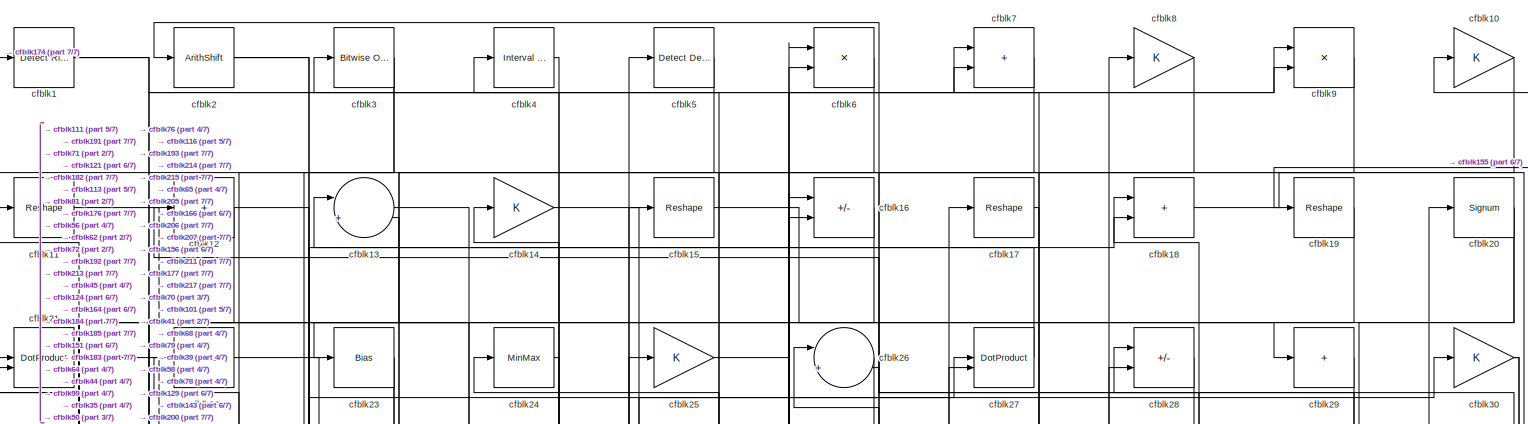
[diagram: root canvas - part 1/7, full width, top band]
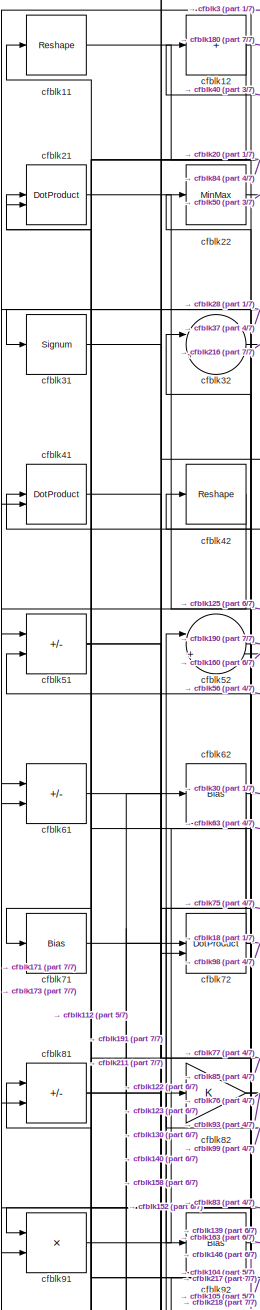
[diagram: root canvas - part 2/7, top left region]
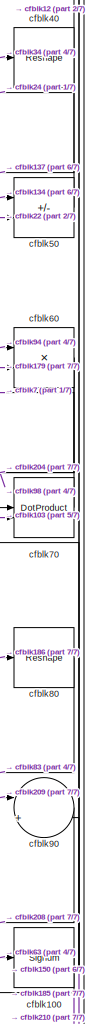
[diagram: root canvas - part 3/7, top right region]
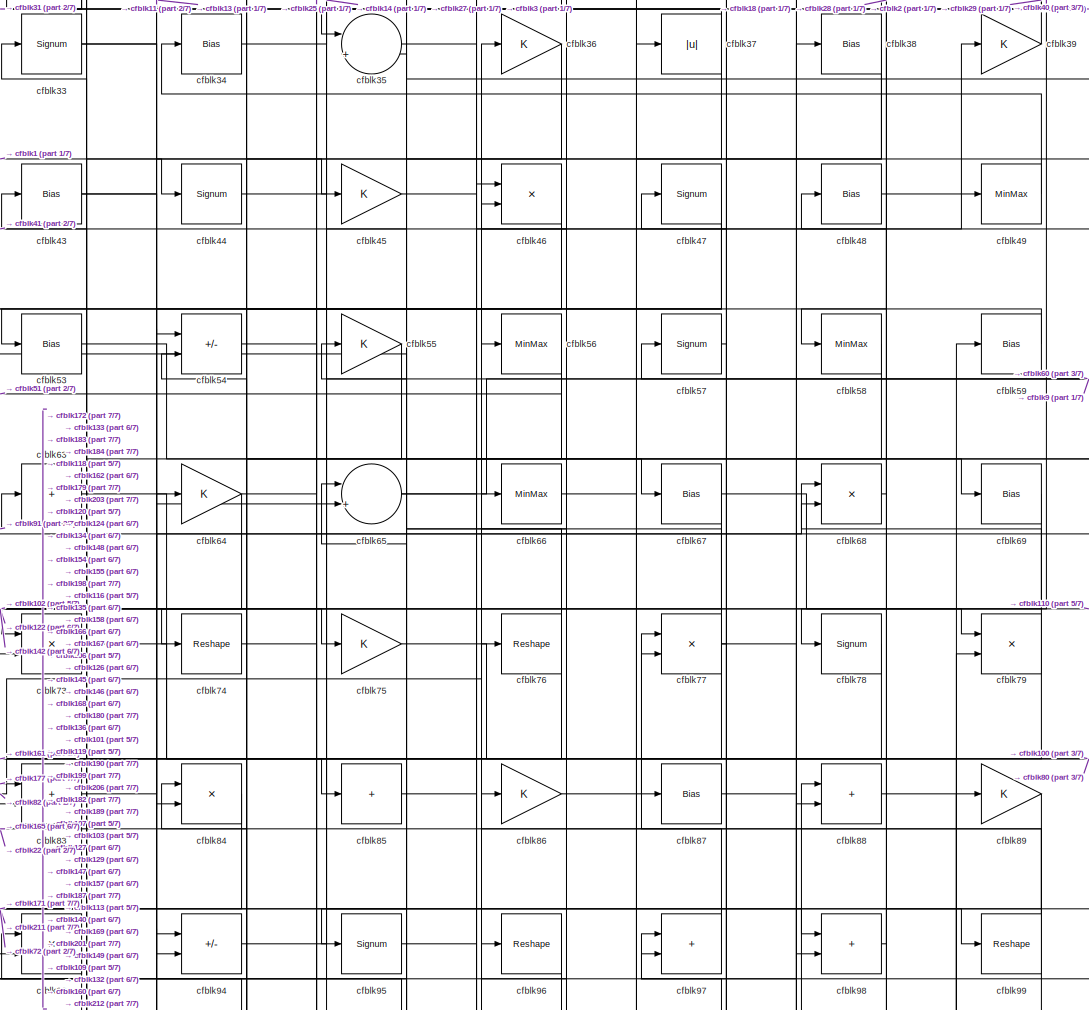
[diagram: root canvas - part 4/7, top center region]
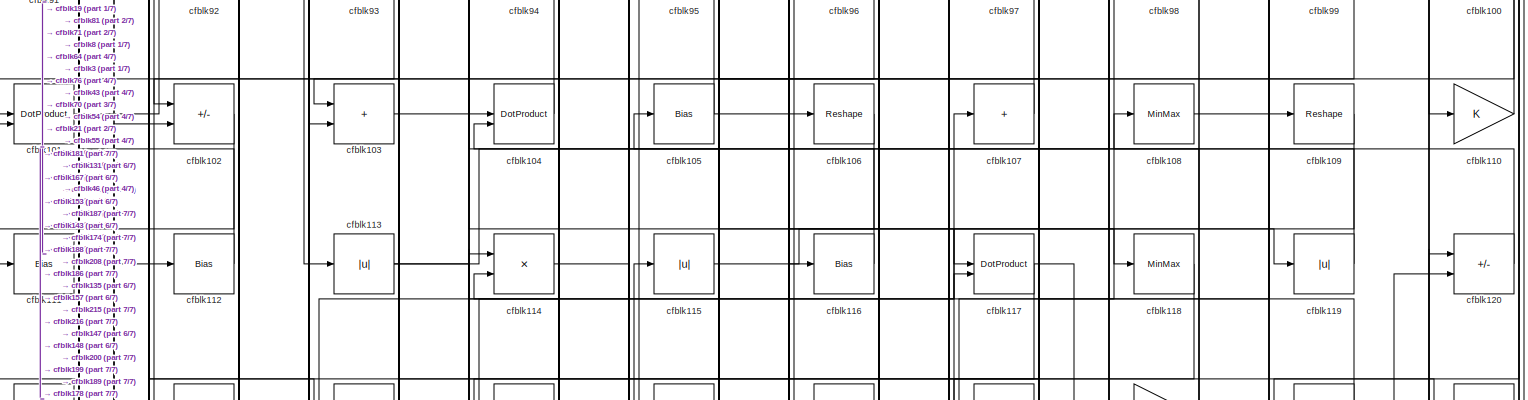
[diagram: root canvas - part 5/7, full width, middle band]
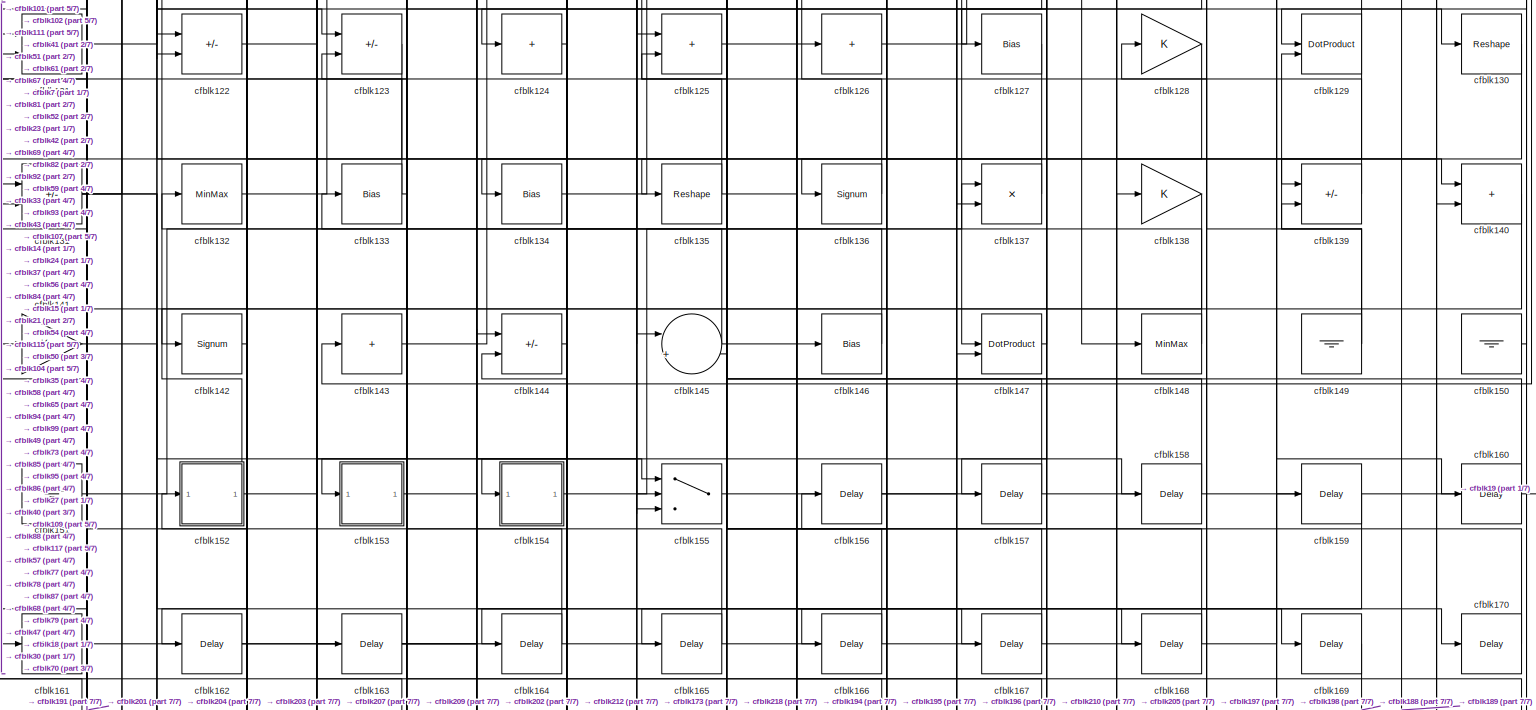
[diagram: root canvas - part 6/7, full width, middle band]
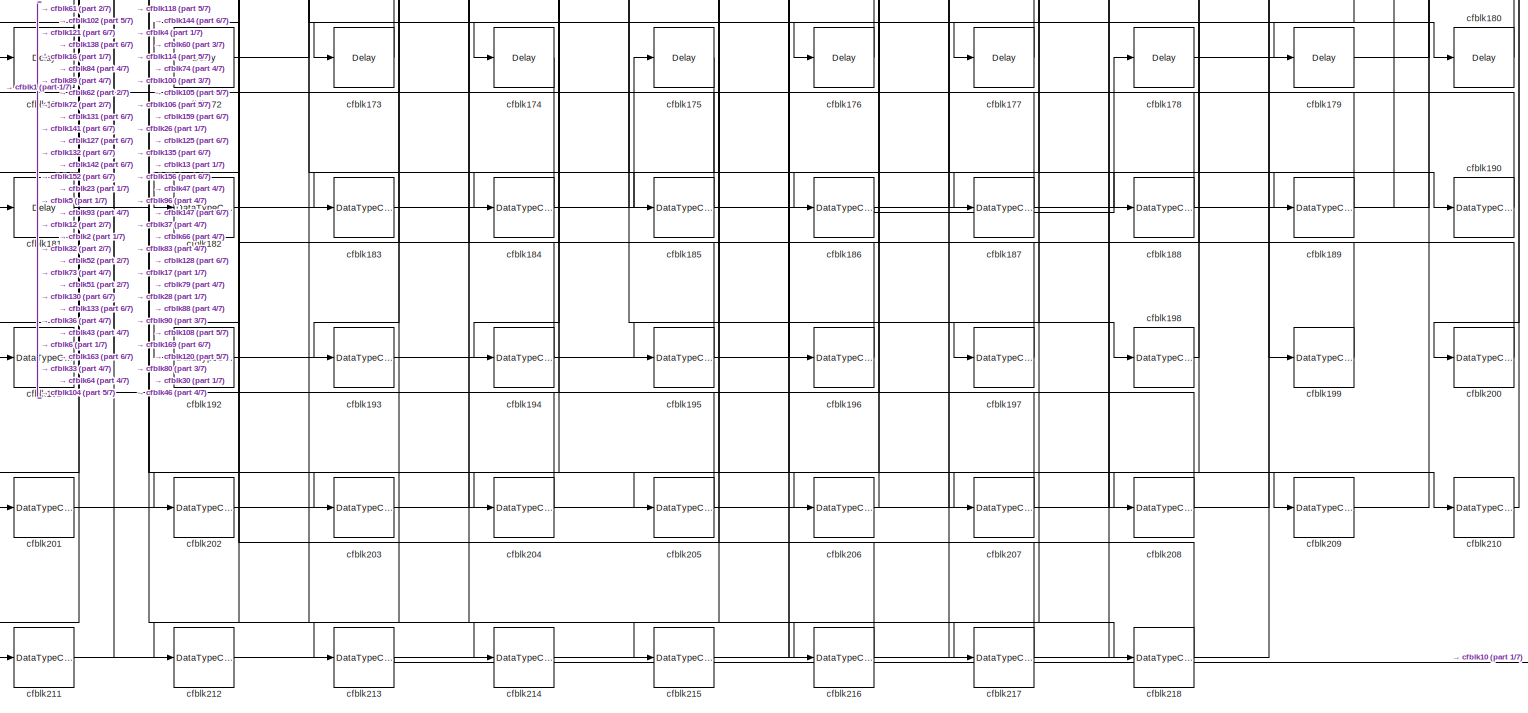
[diagram: root canvas - part 7/7, full width, bottom band]
MODEL slx_3838f00c95ae
KIND model
CONFIG AbsTol = auto
CONFIG EnableMultiTasking = off
CONFIG FixedStep = auto
CONFIG MaxStep = auto
CONFIG MinStep = auto
CONFIG RelTol = 1e-3
CONFIG SampleTimeConstraint = Unconstrained
CONFIG SolverName = VariableStepAuto
CONFIG StartTime = 0.0
CONFIG StopTime = 10.0
BLOCK [Reference] cfblk1  REF=hdlsllib/Logic and Bit
Operations/Detect Rise
Nonnegative
  SourceBlock = hdlsllib/Logic and Bit\nOperations/Detect Rise\nNonnegative
  SourceType = Detect Rise Nonnegative
BLOCK [Gain] cfblk10
BLOCK [Signum] cfblk100
BLOCK [DotProduct] cfblk101
  OutDataTypeStr = Inherit: Inherit via internal rule
BLOCK [Sum] cfblk102
  IconShape = rectangular
  Inputs = +-
BLOCK [Sum] cfblk103
  IconShape = rectangular
BLOCK [DotProduct] cfblk104
  OutDataTypeStr = Inherit: Inherit via internal rule
BLOCK [Bias] cfblk105
  Bias = 0.0
  SaturateOnIntegerOverflow = off
BLOCK [Reshape] cfblk106
BLOCK [Sum] cfblk107
  IconShape = rectangular
  Inputs = +
BLOCK [MinMax] cfblk108
BLOCK [Reshape] cfblk109
BLOCK [Reshape] cfblk11
BLOCK [Gain] cfblk110
BLOCK [Bias] cfblk111
  Bias = 0.0
  SaturateOnIntegerOverflow = off
BLOCK [Bias] cfblk112
  Bias = 0.0
  SaturateOnIntegerOverflow = off
BLOCK [Abs] cfblk113
  SaturateOnIntegerOverflow = off
BLOCK [Product] cfblk114
  Inputs = */
  RndMeth = Zero
  SaturateOnIntegerOverflow = on
BLOCK [Abs] cfblk115
  SaturateOnIntegerOverflow = off
BLOCK [Bias] cfblk116
  Bias = 0.0
  SaturateOnIntegerOverflow = off
BLOCK [DotProduct] cfblk117
  OutDataTypeStr = Inherit: Inherit via internal rule
BLOCK [MinMax] cfblk118
BLOCK [Abs] cfblk119
  SaturateOnIntegerOverflow = off
BLOCK [Sum] cfblk12
  IconShape = rectangular
  Inputs = +
BLOCK [Sum] cfblk120
  IconShape = rectangular
  Inputs = +-
BLOCK [Product] cfblk121
  Inputs = */
  RndMeth = Zero
  SaturateOnIntegerOverflow = on
BLOCK [Sum] cfblk122
  IconShape = rectangular
  Inputs = +-
BLOCK [Sum] cfblk123
  IconShape = rectangular
  Inputs = +-
BLOCK [Sum] cfblk124
  IconShape = rectangular
  Inputs = +
BLOCK [Sum] cfblk125
  IconShape = rectangular
BLOCK [Sum] cfblk126
  IconShape = rectangular
  Inputs = +
BLOCK [Bias] cfblk127
  Bias = 0.0
  SaturateOnIntegerOverflow = off
BLOCK [Gain] cfblk128
BLOCK [DotProduct] cfblk129
  OutDataTypeStr = Inherit: Inherit via internal rule
BLOCK [Sum] cfblk13
  Inputs = |++
BLOCK [Reshape] cfblk130
BLOCK [Sum] cfblk131
  IconShape = rectangular
  Inputs = +-
BLOCK [MinMax] cfblk132
BLOCK [Bias] cfblk133
  Bias = 0.0
  SaturateOnIntegerOverflow = off
BLOCK [Bias] cfblk134
  Bias = 0.0
  SaturateOnIntegerOverflow = off
BLOCK [Reshape] cfblk135
BLOCK [Signum] cfblk136
BLOCK [Product] cfblk137
  Inputs = */
  RndMeth = Zero
  SaturateOnIntegerOverflow = on
BLOCK [Gain] cfblk138
BLOCK [Sum] cfblk139
  IconShape = rectangular
  Inputs = +-
BLOCK [Gain] cfblk14
BLOCK [Sum] cfblk140
  IconShape = rectangular
BLOCK [Gain] cfblk141
BLOCK [Signum] cfblk142
BLOCK [Sum] cfblk143
  IconShape = rectangular
  Inputs = +
BLOCK [Sum] cfblk144
  IconShape = rectangular
  Inputs = +-
BLOCK [Sum] cfblk145
  Inputs = |++
BLOCK [Bias] cfblk146
  Bias = 0.0
  SaturateOnIntegerOverflow = off
BLOCK [DotProduct] cfblk147
  OutDataTypeStr = Inherit: Inherit via internal rule
BLOCK [MinMax] cfblk148
BLOCK [Ground] cfblk149
BLOCK [Reshape] cfblk15
BLOCK [Ground] cfblk150
BLOCK [Ground] cfblk151
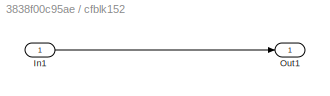
BLOCK [SubSystem] cfblk152
  LibrarySourceBlock = hdlsllib/Ports &\nSubsystems/Subsystem
BLOCK [Inport] cfblk152/In1
BLOCK [Outport] cfblk152/Out1
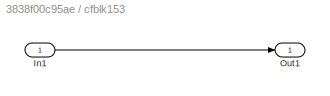
BLOCK [SubSystem] cfblk153
  LibrarySourceBlock = hdlsllib/Ports &\nSubsystems/Subsystem
BLOCK [Inport] cfblk153/In1
BLOCK [Outport] cfblk153/Out1
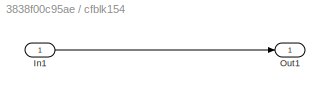
BLOCK [SubSystem] cfblk154
  LibrarySourceBlock = hdlsllib/Ports &\nSubsystems/Subsystem
BLOCK [Inport] cfblk154/In1
BLOCK [Outport] cfblk154/Out1
BLOCK [Switch] cfblk155
  InputSameDT = off
  SaturateOnIntegerOverflow = off
BLOCK [Delay] cfblk156
  InputPortMap = u0
  SampleTime = 1
BLOCK [Delay] cfblk157
  InputPortMap = u0
  SampleTime = 1
BLOCK [Delay] cfblk158
  InputPortMap = u0
  SampleTime = 1
BLOCK [Delay] cfblk159
  InputPortMap = u0
  SampleTime = 1
BLOCK [Sum] cfblk16
  IconShape = rectangular
  Inputs = +-
BLOCK [Delay] cfblk160
  InputPortMap = u0
  SampleTime = 1
BLOCK [Delay] cfblk161
  InputPortMap = u0
  SampleTime = 1
BLOCK [Delay] cfblk162
  InputPortMap = u0
  SampleTime = 1
BLOCK [Delay] cfblk163
  InputPortMap = u0
  SampleTime = 1
BLOCK [Delay] cfblk164
  InputPortMap = u0
  SampleTime = 1
BLOCK [Delay] cfblk165
  InputPortMap = u0
  SampleTime = 1
BLOCK [Delay] cfblk166
  InputPortMap = u0
  SampleTime = 1
BLOCK [Delay] cfblk167
  InputPortMap = u0
  SampleTime = 1
BLOCK [Delay] cfblk168
  InputPortMap = u0
  SampleTime = 1
BLOCK [Delay] cfblk169
  InputPortMap = u0
  SampleTime = 1
BLOCK [Reshape] cfblk17
BLOCK [Delay] cfblk170
  InputPortMap = u0
  SampleTime = 1
BLOCK [Delay] cfblk171
  InputPortMap = u0
  SampleTime = 1
BLOCK [Delay] cfblk172
  InputPortMap = u0
  SampleTime = 1
BLOCK [Delay] cfblk173
  InputPortMap = u0
  SampleTime = 1
BLOCK [Delay] cfblk174
  InputPortMap = u0
  SampleTime = 1
BLOCK [Delay] cfblk175
  InputPortMap = u0
  SampleTime = 1
BLOCK [Delay] cfblk176
  InputPortMap = u0
  SampleTime = 1
BLOCK [Delay] cfblk177
  InputPortMap = u0
  SampleTime = 1
BLOCK [Delay] cfblk178
  InputPortMap = u0
  SampleTime = 1
BLOCK [Delay] cfblk179
  InputPortMap = u0
  SampleTime = 1
BLOCK [Sum] cfblk18
  IconShape = rectangular
BLOCK [Delay] cfblk180
  InputPortMap = u0
  SampleTime = 1
BLOCK [Delay] cfblk181
  InputPortMap = u0
  SampleTime = 1
BLOCK [DataTypeConversion] cfblk182
  OutDataTypeStr = uint8
  RndMeth = Floor
  SaturateOnIntegerOverflow = off
BLOCK [DataTypeConversion] cfblk183
  OutDataTypeStr = uint8
  RndMeth = Floor
  SaturateOnIntegerOverflow = off
BLOCK [DataTypeConversion] cfblk184
  RndMeth = Floor
  SaturateOnIntegerOverflow = off
BLOCK [DataTypeConversion] cfblk185
  OutDataTypeStr = uint8
  RndMeth = Floor
  SaturateOnIntegerOverflow = off
BLOCK [DataTypeConversion] cfblk186
  RndMeth = Floor
  SaturateOnIntegerOverflow = off
BLOCK [DataTypeConversion] cfblk187
  OutDataTypeStr = uint8
  RndMeth = Floor
  SaturateOnIntegerOverflow = off
BLOCK [DataTypeConversion] cfblk188
  OutDataTypeStr = uint8
  RndMeth = Floor
  SaturateOnIntegerOverflow = off
BLOCK [DataTypeConversion] cfblk189
  RndMeth = Floor
  SaturateOnIntegerOverflow = off
BLOCK [Reshape] cfblk19
BLOCK [DataTypeConversion] cfblk190
  OutDataTypeStr = uint8
  RndMeth = Floor
  SaturateOnIntegerOverflow = off
BLOCK [DataTypeConversion] cfblk191
  RndMeth = Floor
  SaturateOnIntegerOverflow = off
BLOCK [DataTypeConversion] cfblk192
  OutDataTypeStr = uint8
  RndMeth = Floor
  SaturateOnIntegerOverflow = off
BLOCK [DataTypeConversion] cfblk193
  OutDataTypeStr = uint8
  RndMeth = Floor
  SaturateOnIntegerOverflow = off
BLOCK [DataTypeConversion] cfblk194
  OutDataTypeStr = uint8
  RndMeth = Floor
  SaturateOnIntegerOverflow = off
BLOCK [DataTypeConversion] cfblk195
  OutDataTypeStr = uint8
  RndMeth = Floor
  SaturateOnIntegerOverflow = off
BLOCK [DataTypeConversion] cfblk196
  OutDataTypeStr = uint8
  RndMeth = Floor
  SaturateOnIntegerOverflow = off
BLOCK [DataTypeConversion] cfblk197
  OutDataTypeStr = uint8
  RndMeth = Floor
  SaturateOnIntegerOverflow = off
BLOCK [DataTypeConversion] cfblk198
  OutDataTypeStr = uint8
  RndMeth = Floor
  SaturateOnIntegerOverflow = off
BLOCK [DataTypeConversion] cfblk199
  OutDataTypeStr = uint8
  RndMeth = Floor
  SaturateOnIntegerOverflow = off
BLOCK [ArithShift] cfblk2
  BitShiftNumber = 8
  InputPortMap = u0
BLOCK [Signum] cfblk20
BLOCK [DataTypeConversion] cfblk200
  OutDataTypeStr = uint8
  RndMeth = Floor
  SaturateOnIntegerOverflow = off
BLOCK [DataTypeConversion] cfblk201
  RndMeth = Floor
  SaturateOnIntegerOverflow = off
BLOCK [DataTypeConversion] cfblk202
  OutDataTypeStr = uint8
  RndMeth = Floor
  SaturateOnIntegerOverflow = off
BLOCK [DataTypeConversion] cfblk203
  OutDataTypeStr = uint8
  RndMeth = Floor
  SaturateOnIntegerOverflow = off
BLOCK [DataTypeConversion] cfblk204
  OutDataTypeStr = uint8
  RndMeth = Floor
  SaturateOnIntegerOverflow = off
BLOCK [DataTypeConversion] cfblk205
  RndMeth = Floor
  SaturateOnIntegerOverflow = off
BLOCK [DataTypeConversion] cfblk206
  OutDataTypeStr = uint8
  RndMeth = Floor
  SaturateOnIntegerOverflow = off
BLOCK [DataTypeConversion] cfblk207
  OutDataTypeStr = uint8
  RndMeth = Floor
  SaturateOnIntegerOverflow = off
BLOCK [DataTypeConversion] cfblk208
  OutDataTypeStr = uint8
  RndMeth = Floor
  SaturateOnIntegerOverflow = off
BLOCK [DataTypeConversion] cfblk209
  OutDataTypeStr = uint8
  RndMeth = Floor
  SaturateOnIntegerOverflow = off
BLOCK [DotProduct] cfblk21
  OutDataTypeStr = Inherit: Inherit via internal rule
BLOCK [DataTypeConversion] cfblk210
  OutDataTypeStr = uint8
  RndMeth = Floor
  SaturateOnIntegerOverflow = off
BLOCK [DataTypeConversion] cfblk211
  RndMeth = Floor
  SaturateOnIntegerOverflow = off
BLOCK [DataTypeConversion] cfblk212
  OutDataTypeStr = uint8
  RndMeth = Floor
  SaturateOnIntegerOverflow = off
BLOCK [DataTypeConversion] cfblk213
  OutDataTypeStr = uint8
  RndMeth = Floor
  SaturateOnIntegerOverflow = off
BLOCK [DataTypeConversion] cfblk214
  OutDataTypeStr = uint8
  RndMeth = Floor
  SaturateOnIntegerOverflow = off
BLOCK [DataTypeConversion] cfblk215
  OutDataTypeStr = uint8
  RndMeth = Floor
  SaturateOnIntegerOverflow = off
BLOCK [DataTypeConversion] cfblk216
  OutDataTypeStr = uint8
  RndMeth = Floor
  SaturateOnIntegerOverflow = off
BLOCK [DataTypeConversion] cfblk217
  OutDataTypeStr = uint8
  RndMeth = Floor
  SaturateOnIntegerOverflow = off
BLOCK [DataTypeConversion] cfblk218
  OutDataTypeStr = uint8
  RndMeth = Floor
  SaturateOnIntegerOverflow = off
BLOCK [MinMax] cfblk22
BLOCK [Bias] cfblk23
  Bias = 0.0
  SaturateOnIntegerOverflow = off
BLOCK [MinMax] cfblk24
BLOCK [Gain] cfblk25
BLOCK [Sum] cfblk26
  Inputs = |++
BLOCK [DotProduct] cfblk27
  OutDataTypeStr = Inherit: Inherit via internal rule
BLOCK [Sum] cfblk28
  IconShape = rectangular
  Inputs = +-
BLOCK [Sum] cfblk29
  IconShape = rectangular
  Inputs = +
BLOCK [Reference] cfblk3  REF=simulink/Logic and Bit
Operations/Bitwise
Operator
  LibrarySourceBlock = hdlsllib/Logic and Bit\nOperations/Bitwise\nOperator
  SourceBlock = simulink/Logic and Bit\nOperations/Bitwise\nOperator
  SourceType = Bitwise Operator
BLOCK [Gain] cfblk30
BLOCK [Signum] cfblk31
BLOCK [Sum] cfblk32
  Inputs = |++
BLOCK [Signum] cfblk33
BLOCK [Bias] cfblk34
  Bias = 0.0
  SaturateOnIntegerOverflow = off
BLOCK [Sum] cfblk35
  Inputs = |++
BLOCK [Gain] cfblk36
BLOCK [Abs] cfblk37
  SaturateOnIntegerOverflow = off
BLOCK [Bias] cfblk38
  Bias = 0.0
  SaturateOnIntegerOverflow = off
BLOCK [Gain] cfblk39
BLOCK [Reference] cfblk4  REF=hdlsllib/Logic and Bit
Operations/Interval Test
  SourceBlock = hdlsllib/Logic and Bit\nOperations/Interval Test
  SourceType = Interval Test
BLOCK [Reshape] cfblk40
BLOCK [DotProduct] cfblk41
  OutDataTypeStr = Inherit: Inherit via internal rule
BLOCK [Reshape] cfblk42
BLOCK [Bias] cfblk43
  Bias = 0.0
  SaturateOnIntegerOverflow = off
BLOCK [Signum] cfblk44
BLOCK [Gain] cfblk45
BLOCK [Product] cfblk46
  Inputs = */
  RndMeth = Zero
  SaturateOnIntegerOverflow = on
BLOCK [Signum] cfblk47
BLOCK [Bias] cfblk48
  Bias = 0.0
  SaturateOnIntegerOverflow = off
BLOCK [MinMax] cfblk49
BLOCK [Reference] cfblk5  REF=simulink/Logic and Bit
Operations/Detect
Decrease
  LibrarySourceBlock = hdlsllib/Logic and Bit\nOperations/Detect\nDecrease
  SourceBlock = simulink/Logic and Bit\nOperations/Detect\nDecrease
  SourceType = Detect Decrease
BLOCK [Sum] cfblk50
  IconShape = rectangular
  Inputs = +-
BLOCK [Sum] cfblk51
  IconShape = rectangular
  Inputs = +-
BLOCK [Sum] cfblk52
  Inputs = |++
BLOCK [Bias] cfblk53
  Bias = 0.0
  SaturateOnIntegerOverflow = off
BLOCK [Sum] cfblk54
  IconShape = rectangular
  Inputs = +-
BLOCK [Gain] cfblk55
BLOCK [MinMax] cfblk56
BLOCK [Signum] cfblk57
BLOCK [MinMax] cfblk58
BLOCK [Bias] cfblk59
  Bias = 0.0
  SaturateOnIntegerOverflow = off
BLOCK [Product] cfblk6
  Inputs = */
  RndMeth = Zero
  SaturateOnIntegerOverflow = on
BLOCK [Product] cfblk60
  Inputs = */
  RndMeth = Zero
  SaturateOnIntegerOverflow = on
BLOCK [Sum] cfblk61
  IconShape = rectangular
  Inputs = +-
BLOCK [Bias] cfblk62
  Bias = 0.0
  SaturateOnIntegerOverflow = off
BLOCK [Sum] cfblk63
  IconShape = rectangular
  Inputs = +
BLOCK [Gain] cfblk64
BLOCK [Sum] cfblk65
  Inputs = |++
BLOCK [MinMax] cfblk66
BLOCK [Bias] cfblk67
  Bias = 0.0
  SaturateOnIntegerOverflow = off
BLOCK [Product] cfblk68
  Inputs = */
  RndMeth = Zero
  SaturateOnIntegerOverflow = on
BLOCK [Bias] cfblk69
  Bias = 0.0
  SaturateOnIntegerOverflow = off
BLOCK [Sum] cfblk7
  IconShape = rectangular
BLOCK [DotProduct] cfblk70
  OutDataTypeStr = Inherit: Inherit via internal rule
BLOCK [Bias] cfblk71
  Bias = 0.0
  SaturateOnIntegerOverflow = off
BLOCK [DotProduct] cfblk72
  OutDataTypeStr = Inherit: Inherit via internal rule
BLOCK [Product] cfblk73
  Inputs = */
  RndMeth = Zero
  SaturateOnIntegerOverflow = on
BLOCK [Reshape] cfblk74
BLOCK [Gain] cfblk75
BLOCK [Reshape] cfblk76
BLOCK [Product] cfblk77
  Inputs = */
  RndMeth = Zero
  SaturateOnIntegerOverflow = on
BLOCK [Signum] cfblk78
BLOCK [Product] cfblk79
  Inputs = */
  RndMeth = Zero
  SaturateOnIntegerOverflow = on
BLOCK [Gain] cfblk8
BLOCK [Reshape] cfblk80
BLOCK [Sum] cfblk81
  IconShape = rectangular
  Inputs = +-
BLOCK [Gain] cfblk82
BLOCK [Sum] cfblk83
  IconShape = rectangular
BLOCK [Product] cfblk84
  Inputs = */
  RndMeth = Zero
  SaturateOnIntegerOverflow = on
BLOCK [Sum] cfblk85
  IconShape = rectangular
  Inputs = +
BLOCK [Gain] cfblk86
BLOCK [Bias] cfblk87
  Bias = 0.0
  SaturateOnIntegerOverflow = off
BLOCK [Sum] cfblk88
  IconShape = rectangular
BLOCK [Gain] cfblk89
BLOCK [Product] cfblk9
  Inputs = */
  RndMeth = Zero
  SaturateOnIntegerOverflow = on
BLOCK [Sum] cfblk90
  Inputs = |++
BLOCK [Product] cfblk91
  Inputs = */
  RndMeth = Zero
  SaturateOnIntegerOverflow = on
BLOCK [Bias] cfblk92
  Bias = 0.0
  SaturateOnIntegerOverflow = off
BLOCK [Product] cfblk93
  Inputs = */
  RndMeth = Zero
  SaturateOnIntegerOverflow = on
BLOCK [Sum] cfblk94
  IconShape = rectangular
  Inputs = +-
BLOCK [Signum] cfblk95
BLOCK [Reshape] cfblk96
BLOCK [Sum] cfblk97
  IconShape = rectangular
BLOCK [Sum] cfblk98
  IconShape = rectangular
BLOCK [Reshape] cfblk99
LINE cfblk100:1 -> cfblk185:1
LINE cfblk101:1 -> cfblk8:1
LINE cfblk102:1 -> cfblk181:1
LINE cfblk103:1 -> cfblk70:2
LINE cfblk104:1 -> cfblk21:1
NET cfblk105:1 -> cfblk119:1, cfblk21:2
LINE cfblk106:1 -> cfblk215:1
LINE cfblk107:1 -> cfblk97:1
LINE cfblk108:1 -> cfblk199:1
LINE cfblk109:1 -> cfblk147:1
LINE cfblk10:1 -> cfblk217:1
LINE cfblk110:1 -> cfblk97:2
LINE cfblk111:1 -> cfblk167:1
LINE cfblk112:1 -> cfblk81:1
NET cfblk113:1 -> cfblk117:2, cfblk38:1
LINE cfblk114:1 -> cfblk186:1
LINE cfblk115:1 -> cfblk117:1
LINE cfblk116:1 -> cfblk55:1
NET cfblk117:1 -> cfblk148:1, cfblk153:1
LINE cfblk118:1 -> cfblk174:1
LINE cfblk119:1 -> cfblk46:2
LINE cfblk11:1 -> cfblk84:2
LINE cfblk120:1 -> cfblk54:2
LINE cfblk121:1 -> cfblk7:2
LINE cfblk122:1 -> cfblk68:1
LINE cfblk123:1 -> cfblk131:1
LINE cfblk124:1 -> cfblk14:1
LINE cfblk125:1 -> cfblk196:1
LINE cfblk126:1 -> cfblk88:1
LINE cfblk127:1 -> cfblk202:1
LINE cfblk128:1 -> cfblk197:1
NET cfblk129:1 -> cfblk139:1, cfblk47:1
NET cfblk12:1 -> cfblk180:1, cfblk72:2
LINE cfblk130:1 -> cfblk173:1
NET cfblk131:1 -> cfblk102:2, cfblk207:1, cfblk209:1
LINE cfblk132:1 -> cfblk59:1
NET cfblk133:1 -> cfblk101:1, cfblk93:1
LINE cfblk134:1 -> cfblk50:1
NET cfblk135:1 -> cfblk115:1, cfblk210:1
LINE cfblk136:1 -> cfblk86:1
LINE cfblk137:1 -> cfblk136:1
LINE cfblk138:1 -> cfblk201:1
LINE cfblk139:1 -> cfblk82:1
LINE cfblk13:1 -> cfblk45:1
LINE cfblk140:1 -> cfblk162:1
LINE cfblk141:1 -> cfblk203:1
LINE cfblk142:1 -> cfblk212:1
LINE cfblk143:1 -> cfblk107:1
LINE cfblk144:1 -> cfblk194:1
NET cfblk145:1 -> cfblk33:1, cfblk49:1
LINE cfblk146:1 -> cfblk42:1
LINE cfblk147:1 -> cfblk57:1
LINE cfblk148:1 -> cfblk84:1
NET cfblk149:1 -> cfblk129:2, cfblk139:2, cfblk68:2
LINE cfblk14:1 -> cfblk99:1
LINE cfblk150:1 -> cfblk70:1
LINE cfblk151:1 -> cfblk15:1
LINE cfblk152/In1:1 -> cfblk152/Out1:1
NET cfblk152:1 -> cfblk155:2, cfblk52:1
LINE cfblk153/In1:1 -> cfblk153/Out1:1
LINE cfblk153:1 -> cfblk170:1
LINE cfblk154/In1:1 -> cfblk154/Out1:1
LINE cfblk154:1 -> cfblk137:1
LINE cfblk155:1 -> cfblk19:1
LINE cfblk156:1 -> cfblk27:2
LINE cfblk157:1 -> cfblk104:1
LINE cfblk158:1 -> cfblk94:1
LINE cfblk159:1 -> cfblk195:1
LINE cfblk15:1 -> cfblk29:1
LINE cfblk160:1 -> cfblk52:2
LINE cfblk161:1 -> cfblk79:2
LINE cfblk162:1 -> cfblk54:1
LINE cfblk163:1 -> cfblk218:1
LINE cfblk164:1 -> cfblk123:2
LINE cfblk165:1 -> cfblk131:2
LINE cfblk166:1 -> cfblk65:1
LINE cfblk167:1 -> cfblk35:2
LINE cfblk168:1 -> cfblk125:2
LINE cfblk169:1 -> cfblk188:1
LINE cfblk16:1 -> cfblk191:1
LINE cfblk170:1 -> cfblk145:2
LINE cfblk171:1 -> cfblk61:1
LINE cfblk172:1 -> cfblk73:2
LINE cfblk173:1 -> cfblk51:1
LINE cfblk174:1 -> cfblk1:1
LINE cfblk175:1 -> cfblk193:1
LINE cfblk176:1 -> cfblk13:2
LINE cfblk177:1 -> cfblk83:1
LINE cfblk178:1 -> cfblk120:1
LINE cfblk179:1 -> cfblk60:2
LINE cfblk17:1 -> cfblk177:1
LINE cfblk180:1 -> cfblk46:1
LINE cfblk181:1 -> cfblk214:1
LINE cfblk182:1 -> cfblk37:1
LINE cfblk183:1 -> cfblk5:1
NET cfblk184:1 -> cfblk175:1, cfblk43:1
LINE cfblk185:1 -> cfblk4:1
NET cfblk186:1 -> cfblk178:1, cfblk80:1
LINE cfblk187:1 -> cfblk114:1
LINE cfblk188:1 -> cfblk114:2
NET cfblk189:1 -> cfblk120:2, cfblk156:1
LINE cfblk18:1 -> cfblk143:1
LINE cfblk190:1 -> cfblk66:1
NET cfblk191:1 -> cfblk121:2, cfblk72:1
LINE cfblk192:1 -> cfblk16:1
LINE cfblk193:1 -> cfblk16:2
LINE cfblk194:1 -> cfblk152:1
LINE cfblk195:1 -> cfblk144:1
LINE cfblk196:1 -> cfblk144:2
LINE cfblk197:1 -> cfblk133:1
LINE cfblk198:1 -> cfblk128:1
LINE cfblk199:1 -> cfblk96:1
LINE cfblk19:1 -> cfblk111:1
NET cfblk1:1 -> cfblk44:1, cfblk9:2
LINE cfblk200:1 -> cfblk108:1
NET cfblk201:1 -> cfblk159:1, cfblk88:2
LINE cfblk202:1 -> cfblk138:1
LINE cfblk203:1 -> cfblk64:1
LINE cfblk204:1 -> cfblk141:1
NET cfblk205:1 -> cfblk132:1, cfblk147:2
LINE cfblk206:1 -> cfblk26:1
LINE cfblk207:1 -> cfblk26:2
LINE cfblk208:1 -> cfblk104:2
LINE cfblk209:1 -> cfblk90:1
NET cfblk20:1 -> cfblk71:1, cfblk78:1
LINE cfblk210:1 -> cfblk90:2
NET cfblk211:1 -> cfblk17:1, cfblk28:2, cfblk62:1
LINE cfblk212:1 -> cfblk89:1
LINE cfblk213:1 -> cfblk10:1
LINE cfblk214:1 -> cfblk6:1
LINE cfblk215:1 -> cfblk6:2
LINE cfblk216:1 -> cfblk105:1
LINE cfblk217:1 -> cfblk32:1
LINE cfblk218:1 -> cfblk32:2
LINE cfblk21:1 -> cfblk125:1
LINE cfblk22:1 -> cfblk50:2
NET cfblk23:1 -> cfblk121:1, cfblk192:1
LINE cfblk24:1 -> cfblk164:1
LINE cfblk25:1 -> cfblk116:1
LINE cfblk26:1 -> cfblk205:1
LINE cfblk27:1 -> cfblk13:1
LINE cfblk28:1 -> cfblk41:2
LINE cfblk29:1 -> cfblk58:1
NET cfblk2:1 -> cfblk176:1, cfblk56:1
NET cfblk30:1 -> cfblk129:1, cfblk200:1
LINE cfblk31:1 -> cfblk85:1
LINE cfblk32:1 -> cfblk216:1
NET cfblk33:1 -> cfblk179:1, cfblk79:1
LINE cfblk34:1 -> cfblk40:1
LINE cfblk35:1 -> cfblk69:1
LINE cfblk36:1 -> cfblk183:1
NET cfblk37:1 -> cfblk154:1, cfblk31:1
NET cfblk38:1 -> cfblk87:1, cfblk95:1
LINE cfblk39:1 -> cfblk2:1
NET cfblk3:1 -> cfblk113:1, cfblk81:2
NET cfblk40:1 -> cfblk12:1, cfblk137:2
LINE cfblk41:1 -> cfblk158:1
LINE cfblk42:1 -> cfblk61:2
NET cfblk43:1 -> cfblk118:1, cfblk155:1
LINE cfblk44:1 -> cfblk27:1
LINE cfblk45:1 -> cfblk106:1
NET cfblk46:1 -> cfblk74:1, cfblk94:2
NET cfblk47:1 -> cfblk124:1, cfblk155:3, cfblk206:1
LINE cfblk48:1 -> cfblk39:1
LINE cfblk49:1 -> cfblk34:1
LINE cfblk4:1 -> cfblk184:1
LINE cfblk50:1 -> cfblk24:1
NET cfblk51:1 -> cfblk130:1, cfblk75:1, cfblk91:1
LINE cfblk52:1 -> cfblk190:1
LINE cfblk53:1 -> cfblk67:1
LINE cfblk54:1 -> cfblk145:1
LINE cfblk55:1 -> cfblk73:1
NET cfblk56:1 -> cfblk134:1, cfblk51:2
LINE cfblk57:1 -> cfblk103:1
LINE cfblk58:1 -> cfblk135:1
LINE cfblk59:1 -> cfblk53:1
LINE cfblk5:1 -> cfblk182:1
NET cfblk60:1 -> cfblk204:1, cfblk98:2
LINE cfblk61:1 -> cfblk123:1
NET cfblk62:1 -> cfblk30:1, cfblk92:1
LINE cfblk63:1 -> cfblk100:1
NET cfblk64:1 -> cfblk102:1, cfblk25:1
NET cfblk65:1 -> cfblk20:1, cfblk9:1
LINE cfblk66:1 -> cfblk189:1
NET cfblk67:1 -> cfblk110:1, cfblk122:2
LINE cfblk68:1 -> cfblk18:1
LINE cfblk69:1 -> cfblk142:1
LINE cfblk6:1 -> cfblk213:1
LINE cfblk70:1 -> cfblk7:1
LINE cfblk71:1 -> cfblk112:1
NET cfblk72:1 -> cfblk11:1, cfblk18:2, cfblk98:1
LINE cfblk73:1 -> cfblk146:1
LINE cfblk74:1 -> cfblk198:1
LINE cfblk75:1 -> cfblk109:1
NET cfblk76:1 -> cfblk103:2, cfblk3:1
NET cfblk77:1 -> cfblk127:1, cfblk140:1, cfblk161:1, cfblk41:1
LINE cfblk78:1 -> cfblk157:1
NET cfblk79:1 -> cfblk187:1, cfblk28:1
LINE cfblk7:1 -> cfblk166:1
LINE cfblk80:1 -> cfblk83:2
NET cfblk81:1 -> cfblk122:1, cfblk140:2
NET cfblk82:1 -> cfblk76:1, cfblk93:2
NET cfblk83:1 -> cfblk65:2, cfblk91:2
LINE cfblk84:1 -> cfblk171:1
LINE cfblk85:1 -> cfblk126:1
LINE cfblk86:1 -> cfblk77:1
LINE cfblk87:1 -> cfblk169:1
LINE cfblk88:1 -> cfblk160:1
LINE cfblk89:1 -> cfblk211:1
LINE cfblk8:1 -> cfblk23:1
LINE cfblk90:1 -> cfblk208:1
LINE cfblk91:1 -> cfblk63:1
LINE cfblk92:1 -> cfblk163:1
LINE cfblk93:1 -> cfblk172:1
LINE cfblk94:1 -> cfblk60:1
LINE cfblk95:1 -> cfblk168:1
LINE cfblk96:1 -> cfblk101:2
LINE cfblk97:1 -> cfblk36:1
LINE cfblk98:1 -> cfblk48:1
NET cfblk99:1 -> cfblk165:1, cfblk22:1, cfblk77:2
LINE cfblk9:1 -> cfblk35:1
note: NET lines group one-source signal fan-out (src -> all destinations, sorted); 1:1 wires keep LINE
